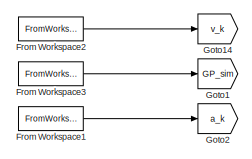
[diagram: root canvas - part 1/6, top center region]
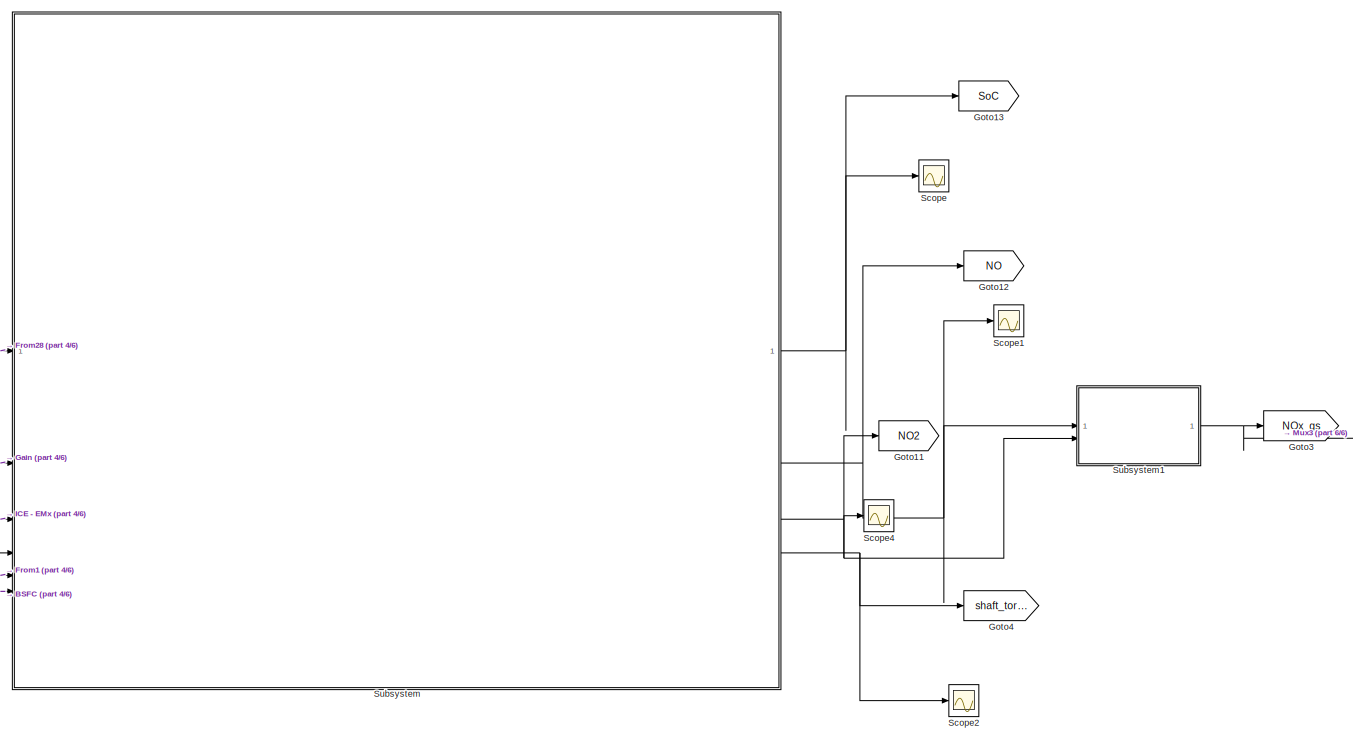
[diagram: root canvas - part 2/6, center side, full height]
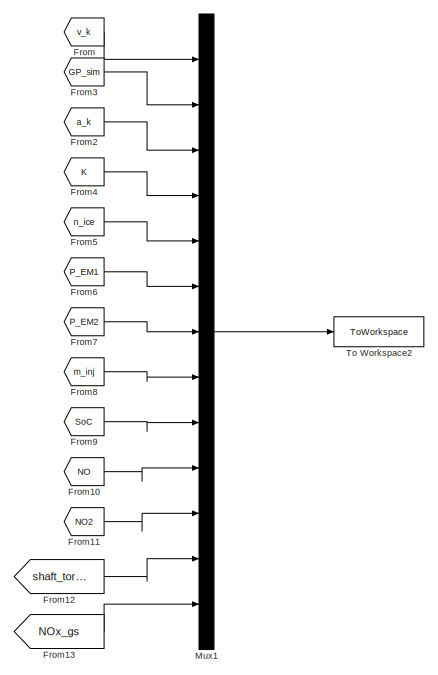
[diagram: root canvas - part 3/6, middle right region]
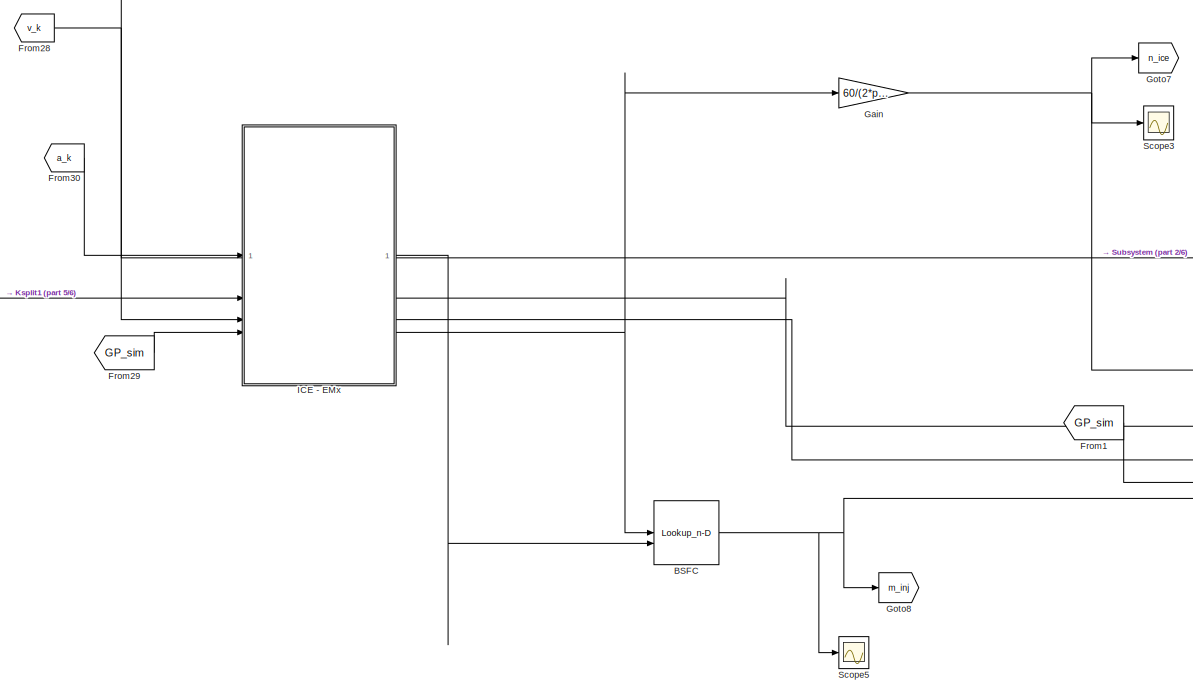
[diagram: root canvas - part 4/6, middle left region]
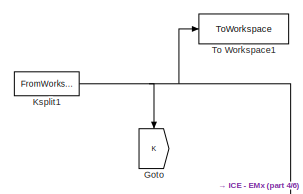
[diagram: root canvas - part 5/6, middle left region]
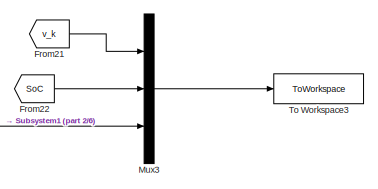
[diagram: root canvas - part 6/6, middle right region]
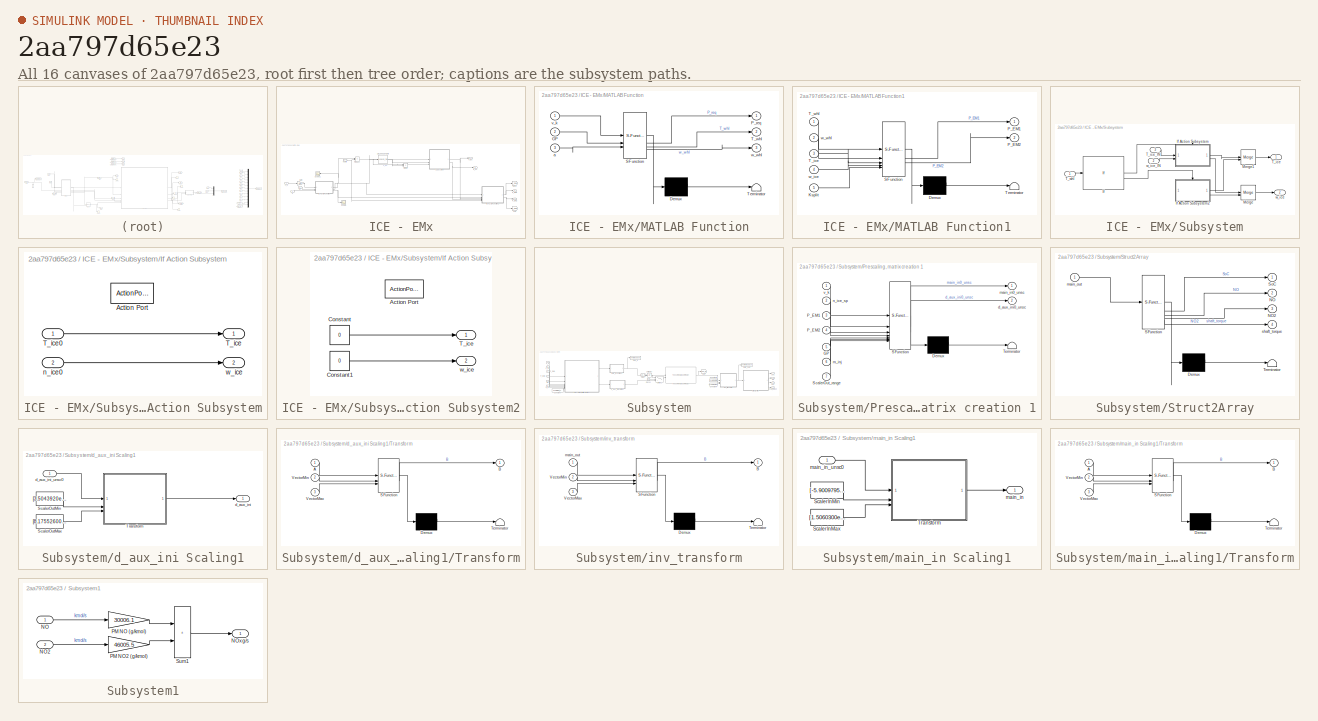
[diagram: thumbnail index - all 16 canvases of the model, root first then tree order]
MODEL slx_2aa797d65e23
KIND model
CONFIG AbsTol = auto
CONFIG EnableMultiTasking = off
CONFIG FixedStep = auto
CONFIG MaxStep = auto
CONFIG MinStep = auto
CONFIG RelTol = 1e-3
CONFIG SampleTimeConstraint = Unconstrained
CONFIG SolverName = VariableStepAuto
CONFIG StartTime = 0.0
CONFIG StopTime = 1200
BLOCK [Lookup_n-D] BSFC
  BreakpointsForDimension1 = Eng_spd_list
  BreakpointsForDimension2 = Eng_trq_list
  InputPortMap = u0,u1
  InternalRulePriority = Speed
  RndMeth = Simplest
  Table = Fuel_map
BLOCK [From] From
  GotoTag = v_k
  TagVisibility = global
BLOCK [FromWorkspace] From Workspace1
  SampleTime = 1
  VariableName = a_ref
BLOCK [FromWorkspace] From Workspace2
  SampleTime = 1
  VariableName = vk_ref
BLOCK [FromWorkspace] From Workspace3
  SampleTime = 1
  VariableName = GP_ref
BLOCK [From] From1
  GotoTag = GP_sim
  TagVisibility = global
BLOCK [From] From10
  GotoTag = NO
BLOCK [From] From11
  GotoTag = NO2
BLOCK [From] From12
  GotoTag = shaft_torque
BLOCK [From] From13
  GotoTag = NOx_gs
BLOCK [From] From2
  GotoTag = a_k
  TagVisibility = global
BLOCK [From] From21
  GotoTag = v_k
  TagVisibility = global
BLOCK [From] From22
  GotoTag = SoC
BLOCK [From] From28
  GotoTag = v_k
  TagVisibility = global
BLOCK [From] From29
  GotoTag = GP_sim
  TagVisibility = global
BLOCK [From] From3
  GotoTag = GP_sim
  TagVisibility = global
BLOCK [From] From30
  GotoTag = a_k
  TagVisibility = global
BLOCK [From] From4
  GotoTag = K
BLOCK [From] From5
  GotoTag = n_ice
  TagVisibility = global
BLOCK [From] From6
  GotoTag = P_EM1
  TagVisibility = global
BLOCK [From] From7
  GotoTag = P_EM2
  TagVisibility = global
BLOCK [From] From8
  GotoTag = m_inj
  TagVisibility = global
BLOCK [From] From9
  GotoTag = SoC
BLOCK [Gain] Gain
  Gain = 60/(2*pi)
BLOCK [Goto] Goto
  GotoTag = K
  NameLocation = left
BLOCK [Goto] Goto1
  GotoTag = GP_sim
  TagVisibility = global
BLOCK [Goto] Goto11
  GotoTag = NO2
BLOCK [Goto] Goto12
  GotoTag = NO
BLOCK [Goto] Goto13
  GotoTag = SoC
BLOCK [Goto] Goto14
  GotoTag = v_k
  TagVisibility = global
BLOCK [Goto] Goto2
  GotoTag = a_k
  TagVisibility = global
BLOCK [Goto] Goto3
  GotoTag = NOx_gs
BLOCK [Goto] Goto4
  GotoTag = shaft_torque
BLOCK [Goto] Goto7
  GotoTag = n_ice
  TagVisibility = global
BLOCK [Goto] Goto8
  GotoTag = m_inj
  TagVisibility = global
BLOCK [SubSystem] ICE - EMx
BLOCK [Lookup_n-D] ICE - EMx/1-D Lookup Table
  BreakpointsForDimension1 = Eng_pwr_opt_list
  InputPortMap = u0
  InternalRulePriority = Speed
  NumberOfTableDimensions = 1
  RndMeth = Simplest
  Table = W_list
BLOCK [Product] ICE - EMx/Divide
  Inputs = */
BLOCK [Inport] ICE - EMx/GP
  Port = 4
BLOCK [Gain] ICE - EMx/Gain
  Gain = 1/3.6
BLOCK [Goto] ICE - EMx/Goto
  GotoTag = P_EM2
  TagVisibility = global
BLOCK [Goto] ICE - EMx/Goto1
  GotoTag = P_EM1
  TagVisibility = global
BLOCK [Inport] ICE - EMx/Ksplit
  Port = 2
BLOCK [SubSystem] ICE - EMx/MATLAB Function
  ErrorFcn = Stateflow.Translate.translate
  PermitHierarchicalResolution = ExplicitOnly
  SFBlockType = MATLAB Function
  TreatAsAtomicUnit = on
BLOCK [Demux] ICE - EMx/MATLAB Function/ Demux 
  Outputs = 1
BLOCK [S-Function] ICE - EMx/MATLAB Function/ SFunction 
  EnableBusSupport = on
  FunctionName = sf_sfun
  PortCounts = [3 4]
  SFcnIsStateOwnerBlock = off
  SFunctionDeploymentMode = off
  Tag = Stateflow S-Function 6
BLOCK [Terminator] ICE - EMx/MATLAB Function/ Terminator 
BLOCK [Inport] ICE - EMx/MATLAB Function/GP
  Port = 2
BLOCK [Outport] ICE - EMx/MATLAB Function/P_req
BLOCK [Outport] ICE - EMx/MATLAB Function/T_whl
  Port = 2
BLOCK [Inport] ICE - EMx/MATLAB Function/a
  Port = 3
BLOCK [Inport] ICE - EMx/MATLAB Function/v_k
BLOCK [Outport] ICE - EMx/MATLAB Function/w_whl
  Port = 3
BLOCK [SubSystem] ICE - EMx/MATLAB Function1
  ErrorFcn = Stateflow.Translate.translate
  PermitHierarchicalResolution = ExplicitOnly
  SFBlockType = MATLAB Function
  TreatAsAtomicUnit = on
BLOCK [Demux] ICE - EMx/MATLAB Function1/ Demux 
  Outputs = 1
BLOCK [S-Function] ICE - EMx/MATLAB Function1/ SFunction 
  EnableBusSupport = on
  FunctionName = sf_sfun
  PortCounts = [5 3]
  SFcnIsStateOwnerBlock = off
  SFunctionDeploymentMode = off
  Tag = Stateflow S-Function 7
BLOCK [Terminator] ICE - EMx/MATLAB Function1/ Terminator 
BLOCK [Inport] ICE - EMx/MATLAB Function1/Ksplit
  Port = 5
BLOCK [Outport] ICE - EMx/MATLAB Function1/P_EM1
BLOCK [Outport] ICE - EMx/MATLAB Function1/P_EM2
  Port = 2
BLOCK [Inport] ICE - EMx/MATLAB Function1/T_ice
  Port = 3
BLOCK [Inport] ICE - EMx/MATLAB Function1/T_whl
BLOCK [Inport] ICE - EMx/MATLAB Function1/w_ice
  Port = 4
BLOCK [Inport] ICE - EMx/MATLAB Function1/w_whl
  Port = 2
BLOCK [Outport] ICE - EMx/P_EM1
  Port = 2
BLOCK [Outport] ICE - EMx/P_EM2
  Port = 3
BLOCK [Product] ICE - EMx/Product
BLOCK [Scope] ICE - EMx/Scope
  Floating = off
  NumInputPorts = 1
  ScopeSpecificationString = Simulink.scopes.TimeScopeBlockCfg('CurrentConfiguration', extmgr.ConfigurationSet(extmgr.Configuration('Core','General UI',true),extmgr.Configuration('Core','Source UI',true),extmgr.Configuration('Sources','WiredSimulink',true,'DataLoggingVariableName','ScopeData7'),extmgr.Configuration('Visuals','Time Domain',true,'SerializedDisplays',{struct('MinYLimReal','-6.63194','MaxYLimReal','59.6874','YLab...<+1509ch>
BLOCK [Scope] ICE - EMx/Scope1
  Floating = off
  NameLocation = top
  NumInputPorts = 1
  ScopeSpecificationString = Simulink.scopes.TimeScopeBlockCfg('CurrentConfiguration', extmgr.ConfigurationSet(extmgr.Configuration('Core','General UI',true),extmgr.Configuration('Core','Source UI',true),extmgr.Configuration('Sources','WiredSimulink',true,'DataLoggingVariableName','ScopeData8'),extmgr.Configuration('Visuals','Time Domain',true,'SerializedDisplays',{struct('MinYLimReal','-34885.33594','MaxYLimReal','38879.9668...<+1539ch>
BLOCK [SubSystem] ICE - EMx/Subsystem
BLOCK [If] ICE - EMx/Subsystem/If
  IfExpression = u1 >= 0
BLOCK [SubSystem] ICE - EMx/Subsystem/If Action Subsystem
  TreatAsAtomicUnit = on
BLOCK [ActionPort] ICE - EMx/Subsystem/If Action Subsystem/Action Port
  ActionPortLabel = if(u1 >= 0)
BLOCK [Outport] ICE - EMx/Subsystem/If Action Subsystem/T_ice
BLOCK [Inport] ICE - EMx/Subsystem/If Action Subsystem/T_ice0
BLOCK [Inport] ICE - EMx/Subsystem/If Action Subsystem/n_ice0
  Port = 2
BLOCK [Outport] ICE - EMx/Subsystem/If Action Subsystem/w_ice
  Port = 2
BLOCK [SubSystem] ICE - EMx/Subsystem/If Action Subsystem2
  TreatAsAtomicUnit = on
BLOCK [ActionPort] ICE - EMx/Subsystem/If Action Subsystem2/Action Port
  ActionPortLabel = else
BLOCK [Constant] ICE - EMx/Subsystem/If Action Subsystem2/Constant
  SampleTime = 0
  Value = 0
BLOCK [Constant] ICE - EMx/Subsystem/If Action Subsystem2/Constant1
  SampleTime = 0
  Value = 0
BLOCK [Outport] ICE - EMx/Subsystem/If Action Subsystem2/T_ice
BLOCK [Outport] ICE - EMx/Subsystem/If Action Subsystem2/w_ice
  Port = 2
BLOCK [Merge] ICE - EMx/Subsystem/Merge
BLOCK [Merge] ICE - EMx/Subsystem/Merge1
BLOCK [Outport] ICE - EMx/Subsystem/T_ice
BLOCK [Inport] ICE - EMx/Subsystem/T_ice_IN
  Port = 3
BLOCK [Inport] ICE - EMx/Subsystem/T_whl
BLOCK [Outport] ICE - EMx/Subsystem/w_ice
  Port = 2
BLOCK [Inport] ICE - EMx/Subsystem/w_ice_IN
  Port = 2
BLOCK [Outport] ICE - EMx/T_ice
BLOCK [Inport] ICE - EMx/a
BLOCK [Inport] ICE - EMx/v_k
  Port = 3
BLOCK [Outport] ICE - EMx/w_ice
  Port = 4
BLOCK [FromWorkspace] Ksplit1
  SampleTime = 1
  VariableName = Ksplit
BLOCK [Mux] Mux1
  DisplayOption = bar
  Inputs = 13
BLOCK [Mux] Mux3
  DisplayOption = bar
  Inputs = 3
BLOCK [Scope] Scope
  Floating = off
  NumInputPorts = 1
  ScopeSpecificationString = Simulink.scopes.TimeScopeBlockCfg('CurrentConfiguration', extmgr.ConfigurationSet(extmgr.Configuration('Core','General UI',true),extmgr.Configuration('Core','Source UI',true),extmgr.Configuration('Sources','WiredSimulink',true),extmgr.Configuration('Visuals','Time Domain',true,'SerializedDisplays',{struct('MinYLimReal','0.55605','MaxYLimReal','0.59901','YLabelReal','','MinYLimMag','0.55605','MaxYL...<+1663ch>
BLOCK [Scope] Scope1
  Floating = off
  NumInputPorts = 1
  ScopeSpecificationString = Simulink.scopes.TimeScopeBlockCfg('CurrentConfiguration', extmgr.ConfigurationSet(extmgr.Configuration('Core','General UI',true),extmgr.Configuration('Core','Source UI',true),extmgr.Configuration('Sources','WiredSimulink',true,'DataLoggingVariableName','ScopeData1'),extmgr.Configuration('Visuals','Time Domain',true,'SerializedDisplays',{struct('MinYLimReal','0.0000017','MaxYLimReal','0.00000218','...<+1696ch>
BLOCK [Scope] Scope2
  Floating = off
  NumInputPorts = 1
  ScopeSpecificationString = Simulink.scopes.TimeScopeBlockCfg('CurrentConfiguration', extmgr.ConfigurationSet(extmgr.Configuration('Core','General UI',true),extmgr.Configuration('Core','Source UI',true),extmgr.Configuration('Sources','WiredSimulink',true,'DataLoggingVariableName','ScopeData2'),extmgr.Configuration('Visuals','Time Domain',true,'SerializedDisplays',{struct('MinYLimReal','-0.0000000007','MaxYLimReal','0.0000000...<+1590ch>
BLOCK [Scope] Scope3
  Floating = off
  NumInputPorts = 1
  ScopeSpecificationString = Simulink.scopes.TimeScopeBlockCfg('CurrentConfiguration', extmgr.ConfigurationSet(extmgr.Configuration('Core','General UI',true),extmgr.Configuration('Core','Source UI',true),extmgr.Configuration('Sources','WiredSimulink',true,'DataLoggingVariableName','ScopeData1'),extmgr.Configuration('Visuals','Time Domain',true,'SerializedDisplays',{struct('MinYLimReal','-326.36693','MaxYLimReal','2937.30235',...<+1510ch>
BLOCK [Scope] Scope4
  Floating = off
  NumInputPorts = 1
  ScopeSpecificationString = Simulink.scopes.TimeScopeBlockCfg('CurrentConfiguration', extmgr.ConfigurationSet(extmgr.Configuration('Core','General UI',true),extmgr.Configuration('Core','Source UI',true),extmgr.Configuration('Sources','WiredSimulink',true,'DataLoggingVariableName','ScopeData1'),extmgr.Configuration('Visuals','Time Domain',true,'SerializedDisplays',{struct('MinYLimReal','-0.000007','MaxYLimReal','0.000008','YL...<+1691ch>
BLOCK [Scope] Scope5
  Floating = off
  NumInputPorts = 1
  ScopeSpecificationString = Simulink.scopes.TimeScopeBlockCfg('CurrentConfiguration', extmgr.ConfigurationSet(extmgr.Configuration('Core','General UI',true),extmgr.Configuration('Core','Source UI',true),extmgr.Configuration('Sources','WiredSimulink',true,'DataLoggingVariableName','ScopeData1'),extmgr.Configuration('Visuals','Time Domain',true,'SerializedDisplays',{struct('MinYLimReal','-0.59051','MaxYLimReal','5.31457','YLab...<+1670ch>
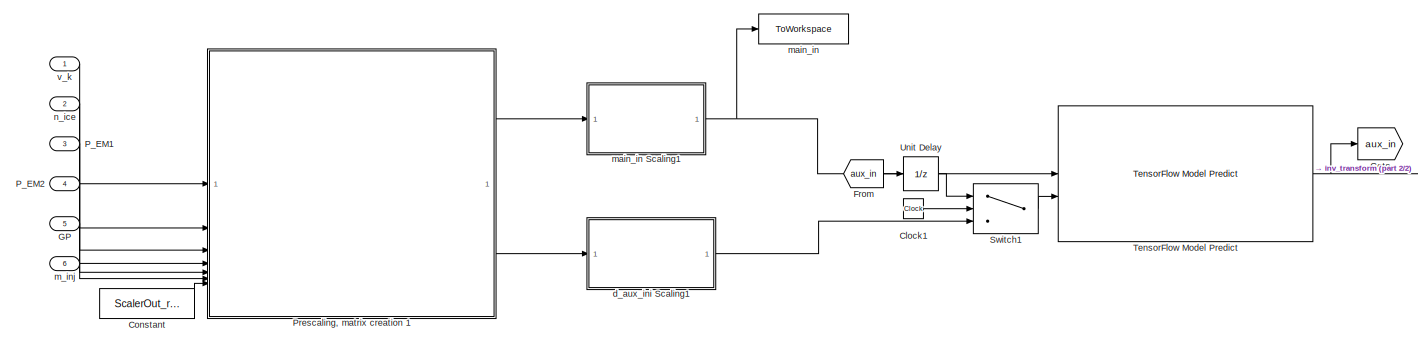
[diagram: Subsystem - part 1/2, center side, full height]
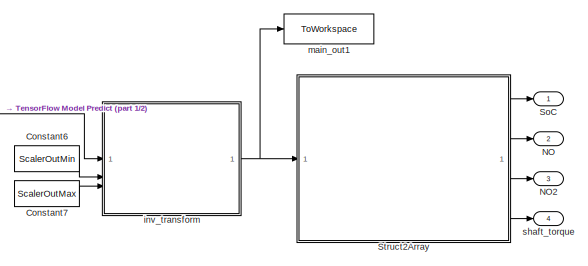
[diagram: Subsystem - part 2/2, middle right region]
BLOCK [SubSystem] Subsystem
BLOCK [Clock] Subsystem/Clock1
BLOCK [Constant] Subsystem/Constant
  Value = ScalerOut_range
BLOCK [Constant] Subsystem/Constant6
  Value = ScalerOutMin
BLOCK [Constant] Subsystem/Constant7
  Value = ScalerOutMax
BLOCK [From] Subsystem/From
  GotoTag = aux_in
  TagVisibility = global
BLOCK [Inport] Subsystem/GP
  Port = 5
BLOCK [Goto] Subsystem/Goto
  GotoTag = aux_in
  TagVisibility = global
BLOCK [Outport] Subsystem/NO
  Port = 2
BLOCK [Outport] Subsystem/NO2
  Port = 3
BLOCK [Inport] Subsystem/P_EM1
  Port = 3
BLOCK [Inport] Subsystem/P_EM2
  Port = 4
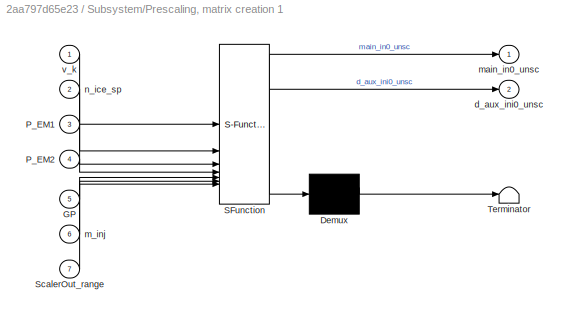
BLOCK [SubSystem] Subsystem/Prescaling, matrix creation 1
  ErrorFcn = Stateflow.Translate.translate
  PermitHierarchicalResolution = ExplicitOnly
  SFBlockType = MATLAB Function
  TreatAsAtomicUnit = on
BLOCK [Demux] Subsystem/Prescaling, matrix creation 1/ Demux 
  Outputs = 1
BLOCK [S-Function] Subsystem/Prescaling, matrix creation 1/ SFunction 
  EnableBusSupport = on
  FunctionName = sf_sfun
  PortCounts = [7 3]
  SFcnIsStateOwnerBlock = off
  SFunctionDeploymentMode = off
  Tag = Stateflow S-Function 2
BLOCK [Terminator] Subsystem/Prescaling, matrix creation 1/ Terminator 
BLOCK [Inport] Subsystem/Prescaling, matrix creation 1/GP
  Port = 5
BLOCK [Inport] Subsystem/Prescaling, matrix creation 1/P_EM1
  Port = 3
BLOCK [Inport] Subsystem/Prescaling, matrix creation 1/P_EM2
  Port = 4
BLOCK [Inport] Subsystem/Prescaling, matrix creation 1/ScalerOut_range
  Port = 7
BLOCK [Outport] Subsystem/Prescaling, matrix creation 1/d_aux_ini0_unsc
  Port = 2
BLOCK [Inport] Subsystem/Prescaling, matrix creation 1/m_inj
  Port = 6
BLOCK [Outport] Subsystem/Prescaling, matrix creation 1/main_in0_unsc
BLOCK [Inport] Subsystem/Prescaling, matrix creation 1/n_ice_sp
  Port = 2
BLOCK [Inport] Subsystem/Prescaling, matrix creation 1/v_k
BLOCK [Outport] Subsystem/SoC
BLOCK [SubSystem] Subsystem/Struct2Array
  ErrorFcn = Stateflow.Translate.translate
  PermitHierarchicalResolution = ExplicitOnly
  SFBlockType = MATLAB Function
  TreatAsAtomicUnit = on
BLOCK [Demux] Subsystem/Struct2Array/ Demux 
  Outputs = 1
BLOCK [S-Function] Subsystem/Struct2Array/ SFunction 
  EnableBusSupport = on
  FunctionName = sf_sfun
  PortCounts = [1 5]
  SFcnIsStateOwnerBlock = off
  SFunctionDeploymentMode = off
  Tag = Stateflow S-Function 3
BLOCK [Terminator] Subsystem/Struct2Array/ Terminator 
BLOCK [Outport] Subsystem/Struct2Array/NO
  Port = 2
BLOCK [Outport] Subsystem/Struct2Array/NO2
  Port = 3
BLOCK [Outport] Subsystem/Struct2Array/SoC
BLOCK [Inport] Subsystem/Struct2Array/main_out
BLOCK [Outport] Subsystem/Struct2Array/shaft_torque
  Port = 4
BLOCK [Switch] Subsystem/Switch1
  InputSameDT = off
  OutDataTypeStr = double
  SaturateOnIntegerOverflow = off
  Threshold = 1
BLOCK [Reference] Subsystem/TensorFlow Model Predict  REF=pycoexlib/TensorFlow Model Predict
  SourceBlock = pycoexlib/TensorFlow Model Predict
  SourceType = TensorFlowModelPredict
BLOCK [UnitDelay] Subsystem/Unit Delay
  HasFrameUpgradeWarning = on
  SampleTime = -1
BLOCK [SubSystem] Subsystem/d_aux_ini Scaling1
BLOCK [Constant] Subsystem/d_aux_ini Scaling1/ScalerOutMax
  Value = [8.17552600e-01 3.79204100e-06 1.99143300e-09 1.02194086e-01]
BLOCK [Constant] Subsystem/d_aux_ini Scaling1/ScalerOutMin
  Value = [3.5043920e-01 1.5963114e-10 3.6094947e-13 -7.3952870e-02]
BLOCK [SubSystem] Subsystem/d_aux_ini Scaling1/Transform
  ErrorFcn = Stateflow.Translate.translate
  PermitHierarchicalResolution = ExplicitOnly
  SFBlockType = MATLAB Function
  TreatAsAtomicUnit = on
BLOCK [Demux] Subsystem/d_aux_ini Scaling1/Transform/ Demux 
  Outputs = 1
BLOCK [S-Function] Subsystem/d_aux_ini Scaling1/Transform/ SFunction 
  EnableBusSupport = on
  FunctionName = sf_sfun
  PortCounts = [3 2]
  SFcnIsStateOwnerBlock = off
  SFunctionDeploymentMode = off
  Tag = Stateflow S-Function 4
BLOCK [Terminator] Subsystem/d_aux_ini Scaling1/Transform/ Terminator 
BLOCK [Inport] Subsystem/d_aux_ini Scaling1/Transform/A
BLOCK [Outport] Subsystem/d_aux_ini Scaling1/Transform/B
BLOCK [Inport] Subsystem/d_aux_ini Scaling1/Transform/VectorMax
  Port = 3
BLOCK [Inport] Subsystem/d_aux_ini Scaling1/Transform/VectorMin
  Port = 2
BLOCK [Outport] Subsystem/d_aux_ini Scaling1/d_aux_ini
BLOCK [Inport] Subsystem/d_aux_ini Scaling1/d_aux_ini_unsc0
BLOCK [SubSystem] Subsystem/inv_transform
  ErrorFcn = Stateflow.Translate.translate
  PermitHierarchicalResolution = ExplicitOnly
  SFBlockType = MATLAB Function
  TreatAsAtomicUnit = on
BLOCK [Demux] Subsystem/inv_transform/ Demux 
  Outputs = 1
BLOCK [S-Function] Subsystem/inv_transform/ SFunction 
  EnableBusSupport = on
  FunctionName = sf_sfun
  PortCounts = [3 2]
  SFcnIsStateOwnerBlock = off
  SFunctionDeploymentMode = off
  Tag = Stateflow S-Function 1
BLOCK [Terminator] Subsystem/inv_transform/ Terminator 
BLOCK [Outport] Subsystem/inv_transform/B
BLOCK [Inport] Subsystem/inv_transform/VectorMax
  Port = 3
BLOCK [Inport] Subsystem/inv_transform/VectorMin
  Port = 2
BLOCK [Inport] Subsystem/inv_transform/main_out
BLOCK [Inport] Subsystem/m_inj
  Port = 6
BLOCK [ToWorkspace] Subsystem/main_in
  FixptAsFi = on
  MaxDataPoints = inf
  SampleTime = 1
  VariableName = main_in
BLOCK [SubSystem] Subsystem/main_in Scaling1
BLOCK [Constant] Subsystem/main_in Scaling1/ScalerInMax
  Value = [1.5060300e+02; 2.8380360e+03; 8.5859970e+00; 5.1123200e+01; 4.4160643e+00; 1.2493309e+00]
BLOCK [Constant] Subsystem/main_in Scaling1/ScalerInMin
  Value = [-5.9009795; 1287.4781; -54.729496;  -3.403699; -4.377029; 0.]
BLOCK [SubSystem] Subsystem/main_in Scaling1/Transform
  ErrorFcn = Stateflow.Translate.translate
  PermitHierarchicalResolution = ExplicitOnly
  SFBlockType = MATLAB Function
  TreatAsAtomicUnit = on
BLOCK [Demux] Subsystem/main_in Scaling1/Transform/ Demux 
  Outputs = 1
BLOCK [S-Function] Subsystem/main_in Scaling1/Transform/ SFunction 
  EnableBusSupport = on
  FunctionName = sf_sfun
  PortCounts = [3 2]
  SFcnIsStateOwnerBlock = off
  SFunctionDeploymentMode = off
  Tag = Stateflow S-Function 13
BLOCK [Terminator] Subsystem/main_in Scaling1/Transform/ Terminator 
BLOCK [Inport] Subsystem/main_in Scaling1/Transform/A
BLOCK [Outport] Subsystem/main_in Scaling1/Transform/B
BLOCK [Inport] Subsystem/main_in Scaling1/Transform/VectorMax
  Port = 3
BLOCK [Inport] Subsystem/main_in Scaling1/Transform/VectorMin
  Port = 2
BLOCK [Outport] Subsystem/main_in Scaling1/main_in
BLOCK [Inport] Subsystem/main_in Scaling1/main_in_unsc0
BLOCK [ToWorkspace] Subsystem/main_out1
  FixptAsFi = on
  MaxDataPoints = inf
  SampleTime = 1
  VariableName = main_out1
BLOCK [Inport] Subsystem/n_ice
  Port = 2
BLOCK [Outport] Subsystem/shaft_torque
  Port = 4
BLOCK [Inport] Subsystem/v_k
BLOCK [SubSystem] Subsystem1
BLOCK [Inport] Subsystem1/NO
BLOCK [Inport] Subsystem1/NO2
  Port = 2
BLOCK [Outport] Subsystem1/NOx g//s
BLOCK [Gain] Subsystem1/PM NO (g//kmol)
  Gain = 30006.1
BLOCK [Gain] Subsystem1/PM NO2 (g//kmol)
  Gain = 46005.5
BLOCK [Sum] Subsystem1/Sum1
  IconShape = rectangular
BLOCK [ToWorkspace] To Workspace1
  FixptAsFi = on
  MaxDataPoints = inf
  SampleTime = 1
  SaveFormat = Timeseries
  VariableName = U_out
BLOCK [ToWorkspace] To Workspace2
  FixptAsFi = on
  MaxDataPoints = inf
  SampleTime = 1
  SaveFormat = Timeseries
  VariableName = logTDC
BLOCK [ToWorkspace] To Workspace3
  FixptAsFi = on
  MaxDataPoints = inf
  SampleTime = 1
  SaveFormat = Timeseries
  VariableName = X_out
NET BSFC:1 -> Goto8:1, Scope5:1, Subsystem:6
LINE From Workspace1:1 -> Goto2:1
LINE From Workspace2:1 -> Goto14:1
LINE From Workspace3:1 -> Goto1:1
LINE From10:1 -> Mux1:10
LINE From11:1 -> Mux1:11
LINE From12:1 -> Mux1:12
LINE From13:1 -> Mux1:13
LINE From1:1 -> Subsystem:5
LINE From21:1 -> Mux3:1
LINE From22:1 -> Mux3:2
NET From28:1 -> ICE - EMx:3, Subsystem:1
LINE From29:1 -> ICE - EMx:4
LINE From2:1 -> Mux1:3
LINE From30:1 -> ICE - EMx:1
LINE From3:1 -> Mux1:2
LINE From4:1 -> Mux1:4
LINE From5:1 -> Mux1:5
LINE From6:1 -> Mux1:6
LINE From7:1 -> Mux1:7
LINE From8:1 -> Mux1:8
LINE From9:1 -> Mux1:9
LINE From:1 -> Mux1:1
NET Gain:1 -> Goto7:1, Scope3:1, Subsystem:2
NET ICE - EMx/1-D Lookup Table:1 -> ICE - EMx/Divide:2, ICE - EMx/Subsystem:2
LINE ICE - EMx/Divide:1 -> ICE - EMx/Subsystem:3
LINE ICE - EMx/GP:1 -> ICE - EMx/MATLAB Function:2
LINE ICE - EMx/Gain:1 -> ICE - EMx/MATLAB Function:1
NET ICE - EMx/Ksplit:1 -> ICE - EMx/MATLAB Function1:5, ICE - EMx/Product:2
NET ICE - EMx/MATLAB Function1:1 -> ICE - EMx/Goto1:1, ICE - EMx/P_EM1:1
NET ICE - EMx/MATLAB Function1:2 -> ICE - EMx/Goto:1, ICE - EMx/P_EM2:1
NET ICE - EMx/MATLAB Function:1 -> ICE - EMx/Product:1, ICE - EMx/Scope1:1
NET ICE - EMx/MATLAB Function:2 -> ICE - EMx/MATLAB Function1:1, ICE - EMx/Subsystem:1
NET ICE - EMx/MATLAB Function:3 -> ICE - EMx/MATLAB Function1:2, ICE - EMx/Scope:1
NET ICE - EMx/Product:1 -> ICE - EMx/1-D Lookup Table:1, ICE - EMx/Divide:1
LINE ICE - EMx/Subsystem/If Action Subsystem/T_ice0:1 -> ICE - EMx/Subsystem/If Action Subsystem/T_ice:1
LINE ICE - EMx/Subsystem/If Action Subsystem/n_ice0:1 -> ICE - EMx/Subsystem/If Action Subsystem/w_ice:1
LINE ICE - EMx/Subsystem/If Action Subsystem2/Constant1:1 -> ICE - EMx/Subsystem/If Action Subsystem2/w_ice:1
LINE ICE - EMx/Subsystem/If Action Subsystem2/Constant:1 -> ICE - EMx/Subsystem/If Action Subsystem2/T_ice:1
LINE ICE - EMx/Subsystem/If Action Subsystem2:1 -> ICE - EMx/Subsystem/Merge1:2
LINE ICE - EMx/Subsystem/If Action Subsystem2:2 -> ICE - EMx/Subsystem/Merge:2
LINE ICE - EMx/Subsystem/If Action Subsystem:1 -> ICE - EMx/Subsystem/Merge1:1
LINE ICE - EMx/Subsystem/If Action Subsystem:2 -> ICE - EMx/Subsystem/Merge:1
LINE ICE - EMx/Subsystem/If:1 -> ICE - EMx/Subsystem/If Action Subsystem:ifaction
LINE ICE - EMx/Subsystem/If:2 -> ICE - EMx/Subsystem/If Action Subsystem2:ifaction
LINE ICE - EMx/Subsystem/Merge1:1 -> ICE - EMx/Subsystem/T_ice:1
LINE ICE - EMx/Subsystem/Merge:1 -> ICE - EMx/Subsystem/w_ice:1
LINE ICE - EMx/Subsystem/T_ice_IN:1 -> ICE - EMx/Subsystem/If Action Subsystem:1
LINE ICE - EMx/Subsystem/T_whl:1 -> ICE - EMx/Subsystem/If:1
LINE ICE - EMx/Subsystem/w_ice_IN:1 -> ICE - EMx/Subsystem/If Action Subsystem:2
NET ICE - EMx/Subsystem:1 -> ICE - EMx/MATLAB Function1:3, ICE - EMx/T_ice:1
NET ICE - EMx/Subsystem:2 -> ICE - EMx/MATLAB Function1:4, ICE - EMx/w_ice:1
LINE ICE - EMx/a:1 -> ICE - EMx/MATLAB Function:3
LINE ICE - EMx/v_k:1 -> ICE - EMx/Gain:1
LINE ICE - EMx:1 -> BSFC:2
LINE ICE - EMx:2 -> Subsystem:3
LINE ICE - EMx:3 -> Subsystem:4
NET ICE - EMx:4 -> BSFC:1, Gain:1
NET Ksplit1:1 -> Goto:1, ICE - EMx:2, To Workspace1:1
LINE Mux1:1 -> To Workspace2:1
LINE Mux3:1 -> To Workspace3:1
LINE Subsystem/Clock1:1 -> Subsystem/Switch1:2
LINE Subsystem/Constant6:1 -> Subsystem/inv_transform:2
LINE Subsystem/Constant7:1 -> Subsystem/inv_transform:3
LINE Subsystem/Constant:1 -> Subsystem/Prescaling, matrix creation 1:7
LINE Subsystem/From:1 -> Subsystem/Unit Delay:1
LINE Subsystem/GP:1 -> Subsystem/Prescaling, matrix creation 1:5
LINE Subsystem/P_EM1:1 -> Subsystem/Prescaling, matrix creation 1:3
LINE Subsystem/P_EM2:1 -> Subsystem/Prescaling, matrix creation 1:4
LINE Subsystem/Prescaling, matrix creation 1:1 -> Subsystem/main_in Scaling1:1
LINE Subsystem/Prescaling, matrix creation 1:2 -> Subsystem/d_aux_ini Scaling1:1
LINE Subsystem/Struct2Array:1 -> Subsystem/SoC:1
LINE Subsystem/Struct2Array:2 -> Subsystem/NO:1
LINE Subsystem/Struct2Array:3 -> Subsystem/NO2:1
LINE Subsystem/Struct2Array:4 -> Subsystem/shaft_torque:1
LINE Subsystem/Switch1:1 -> Subsystem/TensorFlow Model Predict:2
NET Subsystem/TensorFlow Model Predict:1 -> Subsystem/Goto:1, Subsystem/inv_transform:1
LINE Subsystem/Unit Delay:1 -> Subsystem/Switch1:1
LINE Subsystem/d_aux_ini Scaling1/ScalerOutMax:1 -> Subsystem/d_aux_ini Scaling1/Transform:3
LINE Subsystem/d_aux_ini Scaling1/ScalerOutMin:1 -> Subsystem/d_aux_ini Scaling1/Transform:2
LINE Subsystem/d_aux_ini Scaling1/Transform:1 -> Subsystem/d_aux_ini Scaling1/d_aux_ini:1
LINE Subsystem/d_aux_ini Scaling1/d_aux_ini_unsc0:1 -> Subsystem/d_aux_ini Scaling1/Transform:1
LINE Subsystem/d_aux_ini Scaling1:1 -> Subsystem/Switch1:3
NET Subsystem/inv_transform:1 -> Subsystem/Struct2Array:1, Subsystem/main_out1:1
LINE Subsystem/m_inj:1 -> Subsystem/Prescaling, matrix creation 1:6
LINE Subsystem/main_in Scaling1/ScalerInMax:1 -> Subsystem/main_in Scaling1/Transform:3
LINE Subsystem/main_in Scaling1/ScalerInMin:1 -> Subsystem/main_in Scaling1/Transform:2
LINE Subsystem/main_in Scaling1/Transform:1 -> Subsystem/main_in Scaling1/main_in:1
LINE Subsystem/main_in Scaling1/main_in_unsc0:1 -> Subsystem/main_in Scaling1/Transform:1
NET Subsystem/main_in Scaling1:1 -> Subsystem/TensorFlow Model Predict:1, Subsystem/main_in:1
LINE Subsystem/n_ice:1 -> Subsystem/Prescaling, matrix creation 1:2
LINE Subsystem/v_k:1 -> Subsystem/Prescaling, matrix creation 1:1
LINE Subsystem1/NO2:1 -> Subsystem1/PM NO2 (g//kmol):1
LINE Subsystem1/NO:1 -> Subsystem1/PM NO (g//kmol):1
LINE Subsystem1/PM NO (g//kmol):1 -> Subsystem1/Sum1:1
LINE Subsystem1/PM NO2 (g//kmol):1 -> Subsystem1/Sum1:2
LINE Subsystem1/Sum1:1 -> Subsystem1/NOx g//s:1
NET Subsystem1:1 -> Goto3:1, Mux3:3
NET Subsystem:1 -> Goto13:1, Scope:1
NET Subsystem:2 -> Goto12:1, Scope1:1, Subsystem1:1
NET Subsystem:3 -> Goto11:1, Scope4:1, Subsystem1:2
NET Subsystem:4 -> Goto4:1, Scope2:1
note: NET lines group one-source signal fan-out (src -> all destinations, sorted); 1:1 wires keep LINE
CHART Subsystem/inv_transform states=1 transitions=1
  STATE_LABEL 'eML_blk_kernel()'
  STATE_LABEL 'SCRIPT:\nfunction B = inv_transform(main_out,VectorMin,VectorMax)\nA=ones(1,1,4);\nmaxbound=1;\nminbound=-1;\nA(:,:,:)=main_out(:,:,:);\nB=ones(1,1,4);\n    for i=1:1:length(A)\n        X_std=(A(1,1,i)-minbound)/(maxbound-minbound);\n        X_scaled=X_std*(VectorMax(i)-VectorMin(i))+VectorMin(i);\n        B(1,1,i)=X_scaled;\n    end\nend\n\n\n'
CHART Subsystem/Prescaling, matrix creation 1 states=1 transitions=1
  STATE_LABEL 'eML_blk_kernel()'
  STATE_LABEL 'SCRIPT:\nfunction [main_in0_unsc,d_aux_ini0_unsc]= prescaler(v_k,n_ice_sp,P_EM1, P_EM2, GP, m_inj,ScalerOut_range)\n\n\nmain_in=ones(1,1,6);\nmain_in(1,1,1) = v_k; %Velocity_kph\nmain_in(1,1,2) = n_ice_sp; %Engine_Speed_RPM similar to set point\nmain_in(1,1,3) = P_EM1;  %EM1 Power similar to set point\nmain_in(1,1,4) = P_EM2;  %EM2 Power similar to set point\nmain_in(1,1,5) = GP; %Grade in percentage\nmain_...<+545ch>'
CHART Subsystem/Struct2Array states=1 transitions=1
  STATE_LABEL 'eML_blk_kernel()'
  STATE_LABEL 'SCRIPT:\nfunction [SoC, NO, NO2, shaft_torque] = getvars(main_out)\nSoC=main_out(1,1,1);\nNO=main_out(1,1,2);\nNO2=main_out(1,1,3);\nshaft_torque=main_out(1,1,4);\nend\n'
CHART Subsystem/d_aux_ini Scaling1/Transform states=1 transitions=1
  STATE_LABEL 'eML_blk_kernel()'
  STATE_LABEL 'SCRIPT:\nfunction B = transform(A,VectorMin,VectorMax)\n    max=1;\n    min=-1;\n    B=ones(1,1,length(A));\n    for i=1:1:length(A)\n        X_std=(A(1,1,i)-VectorMin(i))/(VectorMax(i)-VectorMin(i));\n        X_scaled=X_std*(max-min)+min;\n        B(1,1,i)=X_scaled;\n    end\nend\n\n\n'
CHART ICE - EMx/MATLAB Function states=1 transitions=1
  STATE_LABEL 'eML_blk_kernel()'
  STATE_LABEL 'SCRIPT:\nfunction [P_req, T_whl, w_whl] = CalcTorque(v_k,GP,a)\ng = 9.81;                            %Gravity, m/s^2\nm= 1750;                         % Vehicle mass, Kg\nf = 0.01;                            % Rolling coefficient, N·m\nC_d = 0.26;\nA = 2.33;\nR_roll = 0.3;\nv=v_k/3.6;\n\ntheta=atan(GP/100);\nw_whl=v_k/R_roll;\n\nT_whl=R_roll*(m*a+m*g*f*cos(theta)+m*g*sin(theta)+(C_d*A*v^2)/21.15);\nP_req=T_whl*...<+9ch>'
CHART ICE - EMx/MATLAB Function1 states=1 transitions=1
  STATE_LABEL 'eML_blk_kernel()'
  STATE_LABEL 'SCRIPT:\nfunction [P_EM1, P_EM2]=EMx_Power(T_whl, w_whl, T_ice, w_ice,Ksplit)\n     k1=1.92;\n     k2=2.6;\n     kf=4.1;\n\n     if Ksplit==0;\n        w_ice=0;\n        w_EM1=(k1+1)*kf*w_whl;\n        w_EM2=-k2*kf*w_whl;\n        T_EM2=-T_whl/(k2*kf);\n        T_EM1=0;\n     else\n         T_EM2 = 1 / (k1 + k2 + 1) * (T_whl * k1 / kf - (k1 + 1) * T_ice); %Formulas from the paper, steady-state eCVT2 with EM1 a...<+301ch>'
CHART Subsystem/main_in Scaling1/Transform states=1 transitions=1
  STATE_LABEL 'eML_blk_kernel()'
  STATE_LABEL 'SCRIPT:\nfunction B = transform(A,VectorMin,VectorMax)\nmax=1;\nmin=-1;\nB=ones(1,1,length(A));\n    for i=1:1:length(A)\n        X_std=(A(1,1,i)-VectorMin(i))/(VectorMax(i)-VectorMin(i));\n        X_scaled=X_std*(max-min)+min;\n        B(1,1,i)=X_scaled;\n    end\nend\n\n\n'
CHART  states=0 transitions=0
CHART  states=0 transitions=0
CHART  states=0 transitions=0
CHART  states=0 transitions=0
CHART  states=0 transitions=0
CHART  states=0 transitions=0
CHART  states=0 transitions=0
